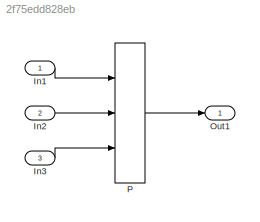
MODEL slx_2f75edd828eb
KIND model
CONFIG AbsTol = auto
CONFIG EnableMultiTasking = off
CONFIG FixedStep = auto
CONFIG MaxStep = auto
CONFIG MinStep = auto
CONFIG RelTol = 1e-3
CONFIG SampleTimeConstraint = Unconstrained
CONFIG Solver = FixedStepDiscrete
CONFIG SolverName = FixedStepDiscrete
CONFIG StartTime = 0.0
CONFIG StopTime = 10.0
BLOCK [Inport] In1
  IconDisplay = Port number
  OutMax = 2
  OutMin = 0
  PortDimensions = 1
BLOCK [Inport] In2
  IconDisplay = Port number
  OutMax = 1.5
  OutMin = -0.5
  Port = 2
BLOCK [Inport] In3
  IconDisplay = Port number
  OutMax = 5
  OutMin = 0
  Port = 3
BLOCK [Outport] Out1
  IconDisplay = Port number
BLOCK [Interpolation_n-D] P
  InputPortMap = u0,u1,u2
  IntermediateResultsDataTypeStr = single
  InternalRulePriority = Speed
  InterpMethod = Nearest
  NumSelectionDims = 1
  OutDataTypeStr = uint8
  Ports = [3, 1]
  RndMeth = Round
  SaturateOnIntegerOverflow = on
  Table = [7.65435430885013 1.23864575805237 44.9258352808028 55.5205502307443 6.81117060684939;101.704201250462 9.09760128258588 51.4317323389702 23.7866335776958 118.107446891128]
  ValidIndexMayReachLast = on
LINE In1:1 -> P:1
LINE In2:1 -> P:2
LINE In3:1 -> P:3
LINE P:1 -> Out1:1
